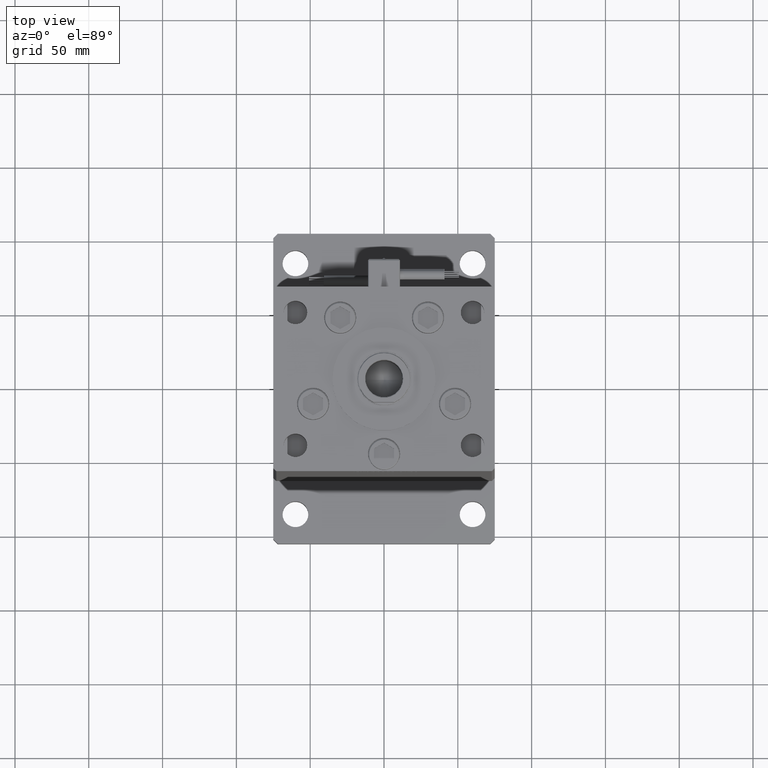
[diagram: clean part render]
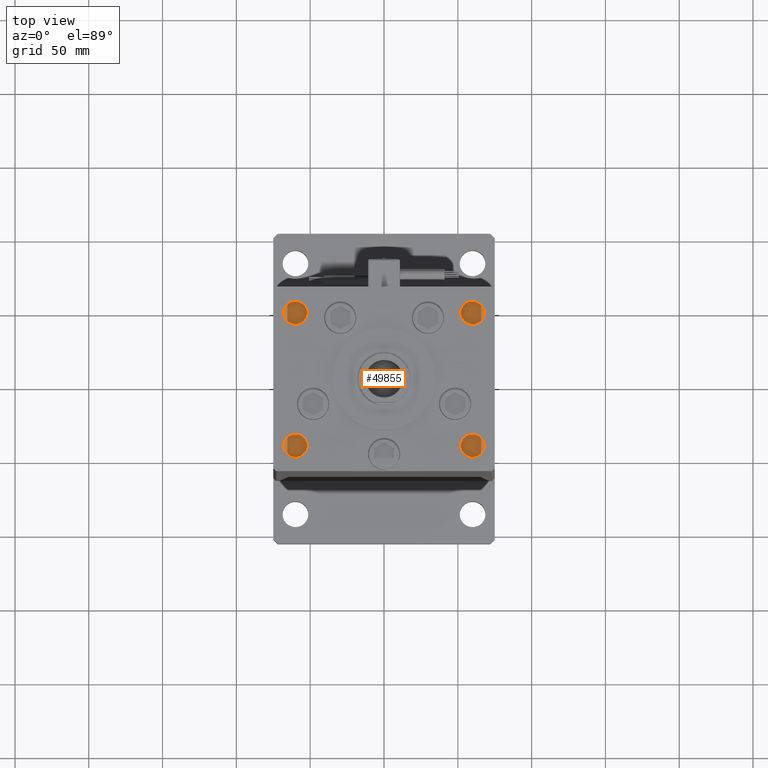
[diagram: same view with one face highlighted and labeled with its STEP entity id]
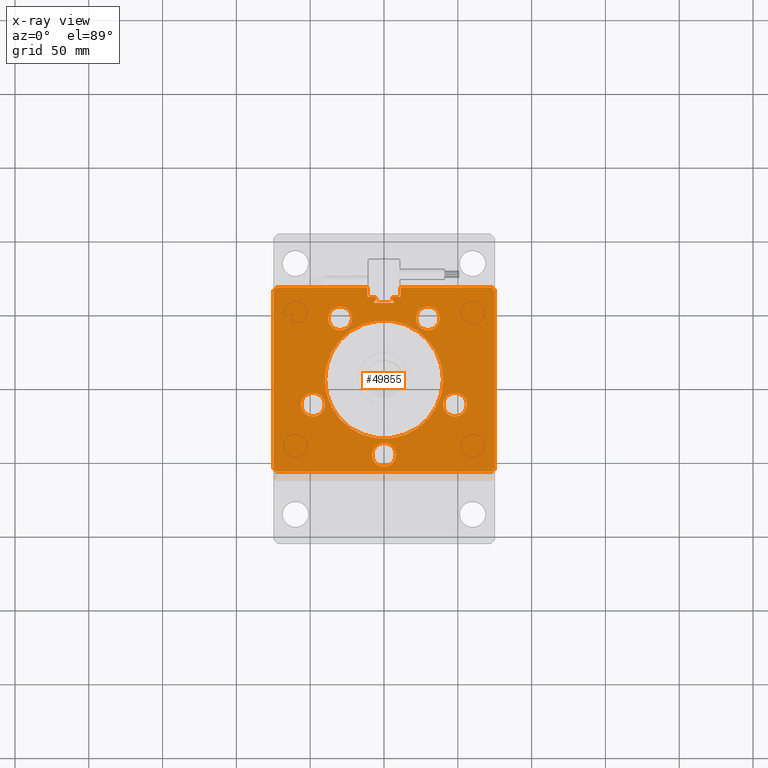
[diagram: x-ray of the same camera — body ghosted, the highlighted face saturated]
A machine part, top view. The second image highlights one B-rep face of the part: STEP entity #49855.
The next image is the same camera in x-ray: the body ghosted, the highlighted face saturated — about 0% of this face is hidden behind the body in this view.
In plain terms, the highlighted planar face has unit normal (0, 0, -1).
Its self-contained STEP definition (entity closure, byte-faithful):
#215 = DIRECTION ( 'NONE',  ( 1.000000000000000000, 0.000000000000000000, 0.000000000000000000 ) ) ;
#229 = CARTESIAN_POINT ( 'NONE',  ( -48.08326112068523628, -17.00000000000000000, 327.0000000000000000 ) ) ;
#259 = DIRECTION ( 'NONE',  ( 1.000000000000000000, 0.000000000000000000, 0.000000000000000000 ) ) ;
#475 = ORIENTED_EDGE ( 'NONE', *, *, #28294, .T. ) ;
#514 = FACE_BOUND ( 'NONE', #52124, .T. ) ;
#779 = VERTEX_POINT ( 'NONE', #13766 ) ;
#1012 = CARTESIAN_POINT ( 'NONE',  ( -75.00000000000001421, 60.50000000000000000, 327.0000000000000000 ) ) ;
#1118 = VERTEX_POINT ( 'NONE', #36047 ) ;
#1220 = CARTESIAN_POINT ( 'NONE',  ( 6.245698675651500444E-15, -51.00000000000000000, 327.0000000000000000 ) ) ;
#1498 = AXIS2_PLACEMENT_3D ( 'NONE', #11671, #6532, #28306 ) ;
#1893 = VERTEX_POINT ( 'NONE', #37259 ) ;
#1987 = DIRECTION ( 'NONE',  ( 1.000000000000000000, 0.000000000000000000, 0.000000000000000000 ) ) ;
#2392 = VERTEX_POINT ( 'NONE', #31036 ) ;
#2674 = VERTEX_POINT ( 'NONE', #22774 ) ;
#3262 = VERTEX_POINT ( 'NONE', #24325 ) ;
#3628 = AXIS2_PLACEMENT_3D ( 'NONE', #30057, #8282, #47807 ) ;
#3842 = CARTESIAN_POINT ( 'NONE',  ( 6.876153656360466826, 51.99999999999986500, 327.0000000000000000 ) ) ;
#4485 = EDGE_LOOP ( 'NONE', ( #8297, #13988 ) ) ;
#4681 = CIRCLE ( 'NONE', #26664, 0.9333333333340068094 ) ;
#5090 = LINE ( 'NONE', #48345, #23746 ) ;
#5351 = EDGE_CURVE ( 'NONE', #51175, #30010, #14629, .T. ) ;
#5624 = EDGE_CURVE ( 'NONE', #42240, #51175, #34609, .T. ) ;
#6328 = CIRCLE ( 'NONE', #50236, 0.9333333333340068094 ) ;
#6514 = VECTOR ( 'NONE', #51974, 1000.000000000000114 ) ;
#6532 = DIRECTION ( 'NONE',  ( 0.000000000000000000, 0.000000000000000000, 1.000000000000000000 ) ) ;
#6610 = CIRCLE ( 'NONE', #45943, 8.000000000000000000 ) ;
#6891 = CARTESIAN_POINT ( 'NONE',  ( 29.73102073172059789, 41.43750000000000000, 327.0000000000000000 ) ) ;
#7321 = DIRECTION ( 'NONE',  ( 1.000000000000000000, 0.000000000000000000, 0.000000000000000000 ) ) ;
#7335 = ORIENTED_EDGE ( 'NONE', *, *, #5351, .F. ) ;
#7900 = CARTESIAN_POINT ( 'NONE',  ( -11.25000000000000178, 0.000000000000000000, 327.0000000000000000 ) ) ;
#7909 = EDGE_CURVE ( 'NONE', #53557, #42240, #5090, .T. ) ;
#8111 = DIRECTION ( 'NONE',  ( 1.000000000000000000, 0.000000000000000000, 0.000000000000000000 ) ) ;
#8282 = DIRECTION ( 'NONE',  ( 0.000000000000000000, 0.000000000000000000, -1.000000000000000000 ) ) ;
#8293 = VECTOR ( 'NONE', #39618, 1000.000000000000000 ) ;
#8297 = ORIENTED_EDGE ( 'NONE', *, *, #49080, .F. ) ;
#8314 = EDGE_LOOP ( 'NONE', ( #45313, #475, #16301, #50955, #24347, #36048, #38677, #33780, #7335, #48528, #34906, #9931, #15403, #9715, #52067, #55735, #22912, #41315, #31431 ) ) ;
#8837 = DIRECTION ( 'NONE',  ( 1.000000000000000000, 0.000000000000000000, 0.000000000000000000 ) ) ;
#9127 = DIRECTION ( 'NONE',  ( 0.000000000000000000, 0.000000000000000000, 1.000000000000000000 ) ) ;
#9414 = FACE_BOUND ( 'NONE', #29331, .T. ) ;
#9501 = CARTESIAN_POINT ( 'NONE',  ( 5.375042956467943611, 54.59999999999898534, 327.0000000000000000 ) ) ;
#9670 = AXIS2_PLACEMENT_3D ( 'NONE', #30449, #35316, #8111 ) ;
#9715 = ORIENTED_EDGE ( 'NONE', *, *, #49736, .F. ) ;
#9931 = ORIENTED_EDGE ( 'NONE', *, *, #55762, .T. ) ;
#10273 = DIRECTION ( 'NONE',  ( -0.000000000000000000, 0.000000000000000000, 1.000000000000000000 ) ) ;
#10289 = VERTEX_POINT ( 'NONE', #34220 ) ;
#10671 = DIRECTION ( 'NONE',  ( 1.000000000000000000, 0.000000000000000000, 0.000000000000000000 ) ) ;
#11337 = DIRECTION ( 'NONE',  ( 0.000000000000000000, 0.000000000000000000, 1.000000000000000000 ) ) ;
#11358 = LINE ( 'NONE', #7900, #34126 ) ;
#11565 = LINE ( 'NONE', #37932, #15700 ) ;
#11584 = EDGE_CURVE ( 'NONE', #21447, #779, #24757, .T. ) ;
#11671 = CARTESIAN_POINT ( 'NONE',  ( 48.08326112068523628, -16.99999999999998934, 327.0000000000000000 ) ) ;
#11827 = AXIS2_PLACEMENT_3D ( 'NONE', #30649, #23125, #259 ) ;
#12270 = CARTESIAN_POINT ( 'NONE',  ( 6.183333333334001480, 55.99999999999999289, 327.0000000000000000 ) ) ;
#12569 = VERTEX_POINT ( 'NONE', #3842 ) ;
#12659 = VERTEX_POINT ( 'NONE', #30484 ) ;
#12713 = ORIENTED_EDGE ( 'NONE', *, *, #11584, .F. ) ;
#12731 = CARTESIAN_POINT ( 'NONE',  ( -74.99999999999998579, -60.50000000000000000, 327.0000000000000000 ) ) ;
#12828 = EDGE_LOOP ( 'NONE', ( #22848, #48666 ) ) ;
#12854 = CARTESIAN_POINT ( 'NONE',  ( 0.000000000000000000, 0.000000000000000000, 327.0000000000000000 ) ) ;
#13113 = DIRECTION ( 'NONE',  ( 0.7071067811865474617, -0.7071067811865474617, 0.000000000000000000 ) ) ;
#13146 = DIRECTION ( 'NONE',  ( 1.000000000000000000, 0.000000000000000000, 0.000000000000000000 ) ) ;
#13239 = EDGE_CURVE ( 'NONE', #2674, #22680, #17514, .T. ) ;
#13722 = FACE_BOUND ( 'NONE', #12828, .T. ) ;
#13766 = CARTESIAN_POINT ( 'NONE',  ( 8.000000000000007105, -51.00000000000000000, 327.0000000000000000 ) ) ;
#13976 = LINE ( 'NONE', #30866, #22155 ) ;
#13983 = CARTESIAN_POINT ( 'NONE',  ( -11.25000000000000178, 62.49999999999999289, 327.0000000000000000 ) ) ;
#13988 = ORIENTED_EDGE ( 'NONE', *, *, #37064, .F. ) ;
#14043 = EDGE_CURVE ( 'NONE', #19877, #54758, #6610, .T. ) ;
#14629 = LINE ( 'NONE', #36972, #40074 ) ;
#14847 = EDGE_LOOP ( 'NONE', ( #18906, #22567 ) ) ;
#14997 = DIRECTION ( 'NONE',  ( 0.000000000000000000, 0.000000000000000000, 1.000000000000000000 ) ) ;
#15118 = VERTEX_POINT ( 'NONE', #53247 ) ;
#15224 = AXIS2_PLACEMENT_3D ( 'NONE', #6891, #45847, #41560 ) ;
#15403 = ORIENTED_EDGE ( 'NONE', *, *, #26838, .T. ) ;
#15421 = EDGE_CURVE ( 'NONE', #50386, #3262, #47407, .T. ) ;
#15700 = VECTOR ( 'NONE', #47351, 1000.000000000000000 ) ;
#16015 = LINE ( 'NONE', #47200, #27374 ) ;
#16301 = ORIENTED_EDGE ( 'NONE', *, *, #17449, .F. ) ;
#16776 = DIRECTION ( 'NONE',  ( 1.000000000000000000, 0.000000000000000000, 0.000000000000000000 ) ) ;
#17128 = EDGE_CURVE ( 'NONE', #15118, #31307, #4681, .T. ) ;
#17449 = EDGE_CURVE ( 'NONE', #48975, #2392, #40027, .T. ) ;
#17514 = CIRCLE ( 'NONE', #24842, 8.000000000000000000 ) ;
#18098 = VECTOR ( 'NONE', #19913, 1000.000000000000000 ) ;
#18181 = CARTESIAN_POINT ( 'NONE',  ( 73.00000000000001421, 62.50000000000000000, 327.0000000000000000 ) ) ;
#18299 = CARTESIAN_POINT ( 'NONE',  ( -48.08326112068523628, -17.00000000000000000, 327.0000000000000000 ) ) ;
#18330 = DIRECTION ( 'NONE',  ( 0.000000000000000000, 0.000000000000000000, -1.000000000000000000 ) ) ;
#18688 = VERTEX_POINT ( 'NONE', #50260 ) ;
#18906 = ORIENTED_EDGE ( 'NONE', *, *, #13239, .F. ) ;
#19184 = CARTESIAN_POINT ( 'NONE',  ( -6.183333333334001480, 55.06666666666598786, 327.0000000000000000 ) ) ;
#19422 = EDGE_CURVE ( 'NONE', #37355, #50386, #11565, .T. ) ;
#19461 = CARTESIAN_POINT ( 'NONE',  ( -72.99999999999998579, -62.50000000000000000, 327.0000000000000000 ) ) ;
#19877 = VERTEX_POINT ( 'NONE', #45164 ) ;
#19913 = DIRECTION ( 'NONE',  ( -1.000000000000000000, 0.000000000000000000, 0.000000000000000000 ) ) ;
#19994 = EDGE_CURVE ( 'NONE', #779, #21447, #33069, .T. ) ;
#20025 = VECTOR ( 'NONE', #13113, 1000.000000000000114 ) ;
#20120 = LINE ( 'NONE', #37599, #53096 ) ;
#20225 = CARTESIAN_POINT ( 'NONE',  ( 6.245698675651500444E-15, -51.00000000000000000, 327.0000000000000000 ) ) ;
#20349 = VECTOR ( 'NONE', #28338, 1000.000000000000000 ) ;
#20409 = VECTOR ( 'NONE', #22558, 1000.000000000000000 ) ;
#20938 = CARTESIAN_POINT ( 'NONE',  ( -11.25000000000000178, 55.99999999999999289, 327.0000000000000000 ) ) ;
#21155 = AXIS2_PLACEMENT_3D ( 'NONE', #1220, #14997, #10671 ) ;
#21183 = DIRECTION ( 'NONE',  ( 0.000000000000000000, 0.000000000000000000, 1.000000000000000000 ) ) ;
#21188 = PLANE ( 'NONE',  #3628 ) ;
#21271 = CARTESIAN_POINT ( 'NONE',  ( 0.000000000000000000, 55.99999999999999289, 327.0000000000000000 ) ) ;
#21447 = VERTEX_POINT ( 'NONE', #43755 ) ;
#21466 = VECTOR ( 'NONE', #42538, 1000.000000000000114 ) ;
#21891 = EDGE_CURVE ( 'NONE', #10289, #12659, #34050, .T. ) ;
#22155 = VECTOR ( 'NONE', #22269, 1000.000000000000000 ) ;
#22238 = CARTESIAN_POINT ( 'NONE',  ( 21.73102073172059789, 41.43750000000000000, 327.0000000000000000 ) ) ;
#22269 = DIRECTION ( 'NONE',  ( -1.000000000000000000, 0.000000000000000000, 0.000000000000000000 ) ) ;
#22296 = DIRECTION ( 'NONE',  ( 1.000000000000000000, 0.000000000000000000, 0.000000000000000000 ) ) ;
#22558 = DIRECTION ( 'NONE',  ( 1.000000000000000000, 0.000000000000000000, 0.000000000000000000 ) ) ;
#22567 = ORIENTED_EDGE ( 'NONE', *, *, #47003, .F. ) ;
#22680 = VERTEX_POINT ( 'NONE', #41340 ) ;
#22717 = CIRCLE ( 'NONE', #54753, 40.00000000000000000 ) ;
#22774 = CARTESIAN_POINT ( 'NONE',  ( -21.73102073172060500, 41.43749999999999289, 327.0000000000000000 ) ) ;
#22848 = ORIENTED_EDGE ( 'NONE', *, *, #39073, .F. ) ;
#22912 = ORIENTED_EDGE ( 'NONE', *, *, #38030, .T. ) ;
#23125 = DIRECTION ( 'NONE',  ( 0.000000000000000000, 0.000000000000000000, 1.000000000000000000 ) ) ;
#23746 = VECTOR ( 'NONE', #22296, 1000.000000000000000 ) ;
#24036 = DIRECTION ( 'NONE',  ( -0.7071067811865474617, -0.7071067811865474617, 0.000000000000000000 ) ) ;
#24325 = CARTESIAN_POINT ( 'NONE',  ( -72.99999999999998579, -62.50000000000000000, 327.0000000000000000 ) ) ;
#24347 = ORIENTED_EDGE ( 'NONE', *, *, #19422, .T. ) ;
#24439 = EDGE_CURVE ( 'NONE', #15118, #26495, #56207, .T. ) ;
#24757 = CIRCLE ( 'NONE', #21155, 8.000000000000000000 ) ;
#24842 = AXIS2_PLACEMENT_3D ( 'NONE', #37415, #11337, #7321 ) ;
#25937 = EDGE_CURVE ( 'NONE', #3262, #50090, #54115, .T. ) ;
#25977 = CARTESIAN_POINT ( 'NONE',  ( 72.99999999999998579, -62.50000000000000000, 327.0000000000000000 ) ) ;
#26451 = CIRCLE ( 'NONE', #11827, 8.000000000000000000 ) ;
#26495 = VERTEX_POINT ( 'NONE', #20938 ) ;
#26610 = DIRECTION ( 'NONE',  ( 1.000000000000000000, 0.000000000000000000, 0.000000000000000000 ) ) ;
#26664 = AXIS2_PLACEMENT_3D ( 'NONE', #19184, #18330, #1987 ) ;
#26681 = DIRECTION ( 'NONE',  ( 1.000000000000000000, 0.000000000000000000, 0.000000000000000000 ) ) ;
#26838 = EDGE_CURVE ( 'NONE', #29472, #28009, #13976, .T. ) ;
#27119 = CARTESIAN_POINT ( 'NONE',  ( -40.08326112068523628, -17.00000000000000000, 327.0000000000000000 ) ) ;
#27374 = VECTOR ( 'NONE', #24036, 1000.000000000000114 ) ;
#27822 = DIRECTION ( 'NONE',  ( 1.000000000000000000, 0.000000000000000000, 0.000000000000000000 ) ) ;
#28009 = VERTEX_POINT ( 'NONE', #12270 ) ;
#28061 = ORIENTED_EDGE ( 'NONE', *, *, #21891, .F. ) ;
#28294 = EDGE_CURVE ( 'NONE', #26495, #2392, #11358, .T. ) ;
#28306 = DIRECTION ( 'NONE',  ( 1.000000000000000000, 0.000000000000000000, 0.000000000000000000 ) ) ;
#28338 = DIRECTION ( 'NONE',  ( 1.000000000000000000, 0.000000000000000000, 0.000000000000000000 ) ) ;
#28816 = CARTESIAN_POINT ( 'NONE',  ( 75.00000000000001421, 60.50000000000000000, 327.0000000000000000 ) ) ;
#29097 = CARTESIAN_POINT ( 'NONE',  ( -74.99999999999998579, -60.50000000000000000, 327.0000000000000000 ) ) ;
#29255 = CARTESIAN_POINT ( 'NONE',  ( -73.00000000000001421, 62.50000000000000000, 327.0000000000000000 ) ) ;
#29258 = AXIS2_PLACEMENT_3D ( 'NONE', #30619, #52379, #8837 ) ;
#29259 = ORIENTED_EDGE ( 'NONE', *, *, #19994, .F. ) ;
#29331 = EDGE_LOOP ( 'NONE', ( #28061, #40735 ) ) ;
#29472 = VERTEX_POINT ( 'NONE', #47089 ) ;
#29808 = CIRCLE ( 'NONE', #9670, 8.000000000000000000 ) ;
#30010 = VERTEX_POINT ( 'NONE', #46145 ) ;
#30057 = CARTESIAN_POINT ( 'NONE',  ( 0.000000000000000000, 0.000000000000000000, 327.0000000000000000 ) ) ;
#30449 = CARTESIAN_POINT ( 'NONE',  ( 29.73102073172059789, 41.43750000000000000, 327.0000000000000000 ) ) ;
#30484 = CARTESIAN_POINT ( 'NONE',  ( 40.00000000000000000, 4.898587196589413026E-15, 327.0000000000000000 ) ) ;
#30508 = CARTESIAN_POINT ( 'NONE',  ( 56.08326112068523628, -16.99999999999998934, 327.0000000000000000 ) ) ;
#30619 = CARTESIAN_POINT ( 'NONE',  ( 6.183333333334001480, 55.06666666666598786, 327.0000000000000000 ) ) ;
#30649 = CARTESIAN_POINT ( 'NONE',  ( 48.08326112068523628, -16.99999999999998934, 327.0000000000000000 ) ) ;
#30692 = DIRECTION ( 'NONE',  ( 0.5000000000000016653, 0.8660254037844375974, 0.000000000000000000 ) ) ;
#30866 = CARTESIAN_POINT ( 'NONE',  ( 0.000000000000000000, 55.99999999999999289, 327.0000000000000000 ) ) ;
#31015 = LINE ( 'NONE', #39335, #8293 ) ;
#31036 = CARTESIAN_POINT ( 'NONE',  ( -11.25000000000000178, 62.49999999999999289, 327.0000000000000000 ) ) ;
#31191 = FACE_BOUND ( 'NONE', #14847, .T. ) ;
#31307 = VERTEX_POINT ( 'NONE', #46927 ) ;
#31431 = ORIENTED_EDGE ( 'NONE', *, *, #17128, .F. ) ;
#31954 = CARTESIAN_POINT ( 'NONE',  ( 0.000000000000000000, 51.99999999999986500, 327.0000000000000000 ) ) ;
#32337 = CARTESIAN_POINT ( 'NONE',  ( -27.67377574066574297, 15.97746187336677259, 327.0000000000000000 ) ) ;
#32408 = CARTESIAN_POINT ( 'NONE',  ( -29.73102073172060500, 41.43749999999999289, 327.0000000000000000 ) ) ;
#32490 = VERTEX_POINT ( 'NONE', #30508 ) ;
#32685 = DIRECTION ( 'NONE',  ( 0.000000000000000000, 0.000000000000000000, -1.000000000000000000 ) ) ;
#33069 = CIRCLE ( 'NONE', #47680, 8.000000000000000000 ) ;
#33244 = EDGE_CURVE ( 'NONE', #48975, #37355, #51682, .T. ) ;
#33467 = VECTOR ( 'NONE', #30692, 1000.000000000000114 ) ;
#33780 = ORIENTED_EDGE ( 'NONE', *, *, #48210, .F. ) ;
#33781 = CIRCLE ( 'NONE', #36515, 8.000000000000000000 ) ;
#33786 = EDGE_LOOP ( 'NONE', ( #45589, #54831 ) ) ;
#34050 = CIRCLE ( 'NONE', #50515, 40.00000000000000000 ) ;
#34126 = VECTOR ( 'NONE', #56299, 1000.000000000000000 ) ;
#34220 = CARTESIAN_POINT ( 'NONE',  ( -40.00000000000000000, 0.000000000000000000, 327.0000000000000000 ) ) ;
#34609 = LINE ( 'NONE', #55812, #20025 ) ;
#34723 = DIRECTION ( 'NONE',  ( -1.000000000000000000, 0.000000000000000000, 0.000000000000000000 ) ) ;
#34906 = ORIENTED_EDGE ( 'NONE', *, *, #7909, .F. ) ;
#35296 = VERTEX_POINT ( 'NONE', #9501 ) ;
#35305 = EDGE_CURVE ( 'NONE', #54758, #19877, #44401, .T. ) ;
#35316 = DIRECTION ( 'NONE',  ( 0.000000000000000000, 0.000000000000000000, 1.000000000000000000 ) ) ;
#35419 = CARTESIAN_POINT ( 'NONE',  ( 11.24999999999999467, 62.49999999999999289, 327.0000000000000000 ) ) ;
#36047 = CARTESIAN_POINT ( 'NONE',  ( 37.73102073172059789, 41.43750000000000000, 327.0000000000000000 ) ) ;
#36048 = ORIENTED_EDGE ( 'NONE', *, *, #15421, .T. ) ;
#36515 = AXIS2_PLACEMENT_3D ( 'NONE', #32408, #49866, #27822 ) ;
#36672 = EDGE_CURVE ( 'NONE', #38353, #1118, #39904, .T. ) ;
#36972 = CARTESIAN_POINT ( 'NONE',  ( 75.00000000000001421, 60.50000000000000000, 327.0000000000000000 ) ) ;
#37064 = EDGE_CURVE ( 'NONE', #53531, #32490, #44481, .T. ) ;
#37259 = CARTESIAN_POINT ( 'NONE',  ( -5.375042956467942723, 54.59999999999898534, 327.0000000000000000 ) ) ;
#37355 = VERTEX_POINT ( 'NONE', #1012 ) ;
#37415 = CARTESIAN_POINT ( 'NONE',  ( -29.73102073172060500, 41.43749999999999289, 327.0000000000000000 ) ) ;
#37599 = CARTESIAN_POINT ( 'NONE',  ( 27.67377574066574297, 15.97746187336677259, 327.0000000000000000 ) ) ;
#37932 = CARTESIAN_POINT ( 'NONE',  ( -75.00000000000001421, 60.50000000000000000, 327.0000000000000000 ) ) ;
#38030 = EDGE_CURVE ( 'NONE', #18688, #1893, #49792, .T. ) ;
#38353 = VERTEX_POINT ( 'NONE', #22238 ) ;
#38541 = DIRECTION ( 'NONE',  ( 0.000000000000000000, 0.000000000000000000, 1.000000000000000000 ) ) ;
#38677 = ORIENTED_EDGE ( 'NONE', *, *, #25937, .T. ) ;
#39073 = EDGE_CURVE ( 'NONE', #1118, #38353, #29808, .T. ) ;
#39207 = DIRECTION ( 'NONE',  ( -0.000000000000000000, 0.000000000000000000, 1.000000000000000000 ) ) ;
#39335 = CARTESIAN_POINT ( 'NONE',  ( 11.25000000000000178, 0.000000000000000000, 327.0000000000000000 ) ) ;
#39618 = DIRECTION ( 'NONE',  ( -0.000000000000000000, -1.000000000000000000, 0.000000000000000000 ) ) ;
#39904 = CIRCLE ( 'NONE', #15224, 8.000000000000000000 ) ;
#40027 = LINE ( 'NONE', #13983, #20409 ) ;
#40074 = VECTOR ( 'NONE', #46131, 1000.000000000000000 ) ;
#40708 = DIRECTION ( 'NONE',  ( 1.000000000000000000, 0.000000000000000000, 0.000000000000000000 ) ) ;
#40735 = ORIENTED_EDGE ( 'NONE', *, *, #46052, .F. ) ;
#41315 = ORIENTED_EDGE ( 'NONE', *, *, #47034, .F. ) ;
#41340 = CARTESIAN_POINT ( 'NONE',  ( -37.73102073172060500, 41.43749999999999289, 327.0000000000000000 ) ) ;
#41560 = DIRECTION ( 'NONE',  ( 1.000000000000000000, 0.000000000000000000, 0.000000000000000000 ) ) ;
#41695 = LINE ( 'NONE', #31954, #18098 ) ;
#42240 = VERTEX_POINT ( 'NONE', #18181 ) ;
#42538 = DIRECTION ( 'NONE',  ( -0.7071067811865474617, -0.7071067811865474617, 0.000000000000000000 ) ) ;
#43097 = CARTESIAN_POINT ( 'NONE',  ( -73.00000000000001421, 62.50000000000000000, 327.0000000000000000 ) ) ;
#43755 = CARTESIAN_POINT ( 'NONE',  ( -7.999999999999992895, -51.00000000000000000, 327.0000000000000000 ) ) ;
#44078 = FACE_BOUND ( 'NONE', #33786, .T. ) ;
#44401 = CIRCLE ( 'NONE', #52653, 8.000000000000000000 ) ;
#44481 = CIRCLE ( 'NONE', #1498, 8.000000000000000000 ) ;
#44623 = EDGE_CURVE ( 'NONE', #12569, #18688, #41695, .T. ) ;
#45164 = CARTESIAN_POINT ( 'NONE',  ( -56.08326112068523628, -17.00000000000000000, 327.0000000000000000 ) ) ;
#45293 = CARTESIAN_POINT ( 'NONE',  ( -6.183333333334001480, 55.06666666666598786, 327.0000000000000000 ) ) ;
#45313 = ORIENTED_EDGE ( 'NONE', *, *, #24439, .T. ) ;
#45589 = ORIENTED_EDGE ( 'NONE', *, *, #35305, .F. ) ;
#45847 = DIRECTION ( 'NONE',  ( 0.000000000000000000, 0.000000000000000000, 1.000000000000000000 ) ) ;
#45943 = AXIS2_PLACEMENT_3D ( 'NONE', #18299, #9127, #26610 ) ;
#46052 = EDGE_CURVE ( 'NONE', #12659, #10289, #22717, .T. ) ;
#46131 = DIRECTION ( 'NONE',  ( -2.293849224432141861E-16, -1.000000000000000000, 0.000000000000000000 ) ) ;
#46145 = CARTESIAN_POINT ( 'NONE',  ( 74.99999999999998579, -60.50000000000000000, 327.0000000000000000 ) ) ;
#46927 = CARTESIAN_POINT ( 'NONE',  ( -5.249999999999994671, 55.06666666666598786, 327.0000000000000000 ) ) ;
#47003 = EDGE_CURVE ( 'NONE', #22680, #2674, #33781, .T. ) ;
#47034 = EDGE_CURVE ( 'NONE', #31307, #1893, #6328, .T. ) ;
#47089 = CARTESIAN_POINT ( 'NONE',  ( 11.25000000000000178, 55.99999999999999289, 327.0000000000000000 ) ) ;
#47200 = CARTESIAN_POINT ( 'NONE',  ( 74.99999999999998579, -60.50000000000000000, 327.0000000000000000 ) ) ;
#47351 = DIRECTION ( 'NONE',  ( 2.293849224432141861E-16, -1.000000000000000000, 0.000000000000000000 ) ) ;
#47407 = LINE ( 'NONE', #29097, #6514 ) ;
#47680 = AXIS2_PLACEMENT_3D ( 'NONE', #20225, #38541, #16776 ) ;
#47807 = DIRECTION ( 'NONE',  ( -1.000000000000000000, 0.000000000000000000, -0.000000000000000000 ) ) ;
#48210 = EDGE_CURVE ( 'NONE', #30010, #50090, #16015, .T. ) ;
#48345 = CARTESIAN_POINT ( 'NONE',  ( -11.25000000000000178, 62.49999999999999289, 327.0000000000000000 ) ) ;
#48528 = ORIENTED_EDGE ( 'NONE', *, *, #5624, .F. ) ;
#48654 = FACE_OUTER_BOUND ( 'NONE', #8314, .T. ) ;
#48666 = ORIENTED_EDGE ( 'NONE', *, *, #36672, .F. ) ;
#48975 = VERTEX_POINT ( 'NONE', #29255 ) ;
#49080 = EDGE_CURVE ( 'NONE', #32490, #53531, #26451, .T. ) ;
#49736 = EDGE_CURVE ( 'NONE', #35296, #28009, #56680, .T. ) ;
#49792 = LINE ( 'NONE', #32337, #33467 ) ;
#49855 = ADVANCED_FACE ( 'NONE', ( #44078, #514, #52946, #13722, #31191, #48654, #9414 ), #21188, .F. ) ;
#49866 = DIRECTION ( 'NONE',  ( 0.000000000000000000, 0.000000000000000000, 1.000000000000000000 ) ) ;
#50090 = VERTEX_POINT ( 'NONE', #25977 ) ;
#50236 = AXIS2_PLACEMENT_3D ( 'NONE', #45293, #32685, #40708 ) ;
#50260 = CARTESIAN_POINT ( 'NONE',  ( -6.876153656360466826, 51.99999999999986500, 327.0000000000000000 ) ) ;
#50386 = VERTEX_POINT ( 'NONE', #12731 ) ;
#50515 = AXIS2_PLACEMENT_3D ( 'NONE', #12854, #39207, #215 ) ;
#50955 = ORIENTED_EDGE ( 'NONE', *, *, #33244, .T. ) ;
#50987 = CARTESIAN_POINT ( 'NONE',  ( 40.08326112068523628, -16.99999999999998934, 327.0000000000000000 ) ) ;
#51175 = VERTEX_POINT ( 'NONE', #28816 ) ;
#51682 = LINE ( 'NONE', #43097, #21466 ) ;
#51890 = CARTESIAN_POINT ( 'NONE',  ( 0.000000000000000000, 0.000000000000000000, 327.0000000000000000 ) ) ;
#51974 = DIRECTION ( 'NONE',  ( 0.7071067811865474617, -0.7071067811865474617, 0.000000000000000000 ) ) ;
#52067 = ORIENTED_EDGE ( 'NONE', *, *, #56069, .T. ) ;
#52124 = EDGE_LOOP ( 'NONE', ( #29259, #12713 ) ) ;
#52379 = DIRECTION ( 'NONE',  ( 0.000000000000000000, 0.000000000000000000, -1.000000000000000000 ) ) ;
#52653 = AXIS2_PLACEMENT_3D ( 'NONE', #229, #21183, #13146 ) ;
#52946 = FACE_BOUND ( 'NONE', #4485, .T. ) ;
#53096 = VECTOR ( 'NONE', #55066, 1000.000000000000114 ) ;
#53247 = CARTESIAN_POINT ( 'NONE',  ( -6.183333333334001480, 55.99999999999999289, 327.0000000000000000 ) ) ;
#53531 = VERTEX_POINT ( 'NONE', #50987 ) ;
#53557 = VERTEX_POINT ( 'NONE', #35419 ) ;
#54115 = LINE ( 'NONE', #19461, #20349 ) ;
#54753 = AXIS2_PLACEMENT_3D ( 'NONE', #51890, #10273, #26681 ) ;
#54758 = VERTEX_POINT ( 'NONE', #27119 ) ;
#54831 = ORIENTED_EDGE ( 'NONE', *, *, #14043, .F. ) ;
#55066 = DIRECTION ( 'NONE',  ( 0.5000000000000016653, -0.8660254037844375974, 0.000000000000000000 ) ) ;
#55735 = ORIENTED_EDGE ( 'NONE', *, *, #44623, .T. ) ;
#55762 = EDGE_CURVE ( 'NONE', #53557, #29472, #31015, .T. ) ;
#55812 = CARTESIAN_POINT ( 'NONE',  ( 73.00000000000001421, 62.50000000000000000, 327.0000000000000000 ) ) ;
#55948 = VECTOR ( 'NONE', #34723, 1000.000000000000000 ) ;
#56069 = EDGE_CURVE ( 'NONE', #35296, #12569, #20120, .T. ) ;
#56207 = LINE ( 'NONE', #21271, #55948 ) ;
#56299 = DIRECTION ( 'NONE',  ( 0.000000000000000000, 1.000000000000000000, 0.000000000000000000 ) ) ;
#56680 = CIRCLE ( 'NONE', #29258, 0.9333333333340068094 ) ;